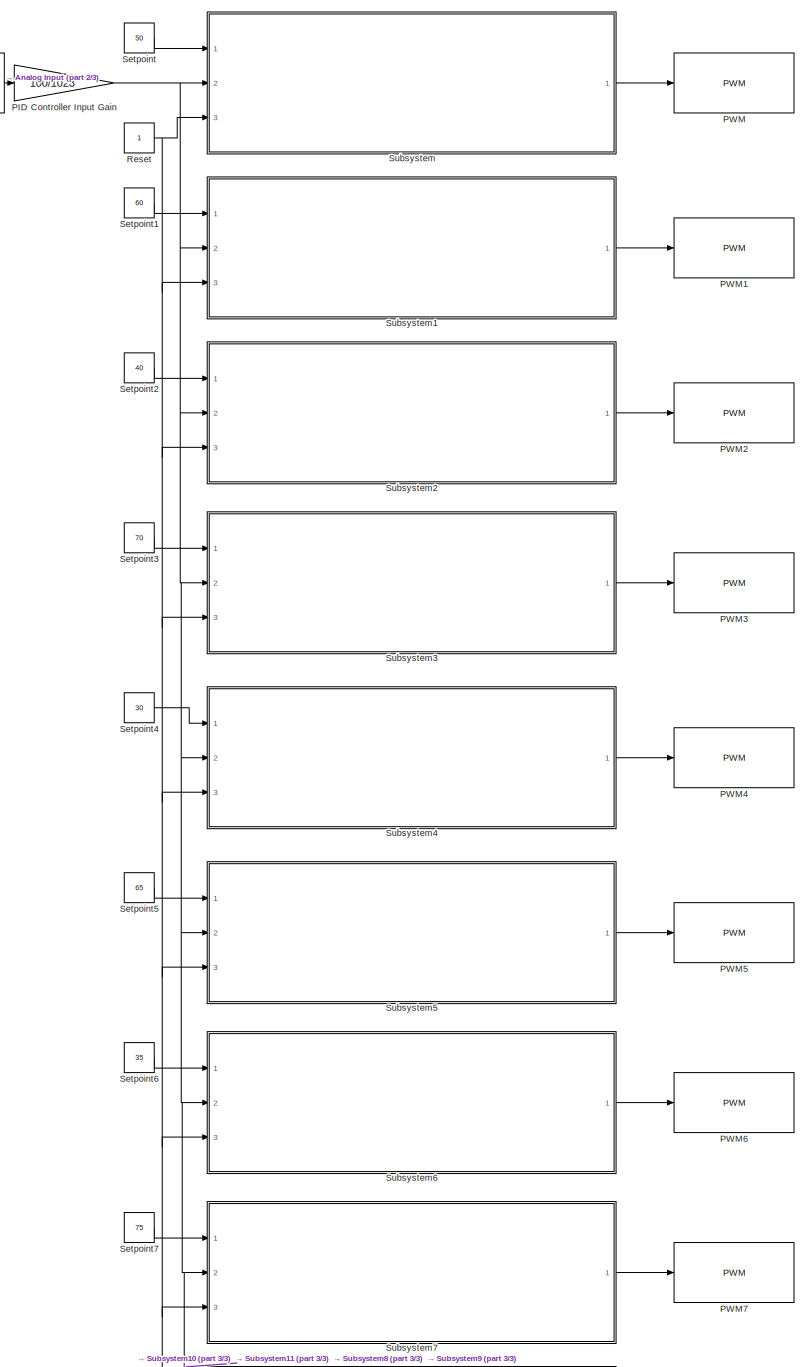
[diagram: root canvas - part 1/3, full width, middle band]
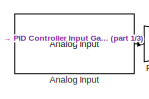
[diagram: root canvas - part 2/3, top left region]
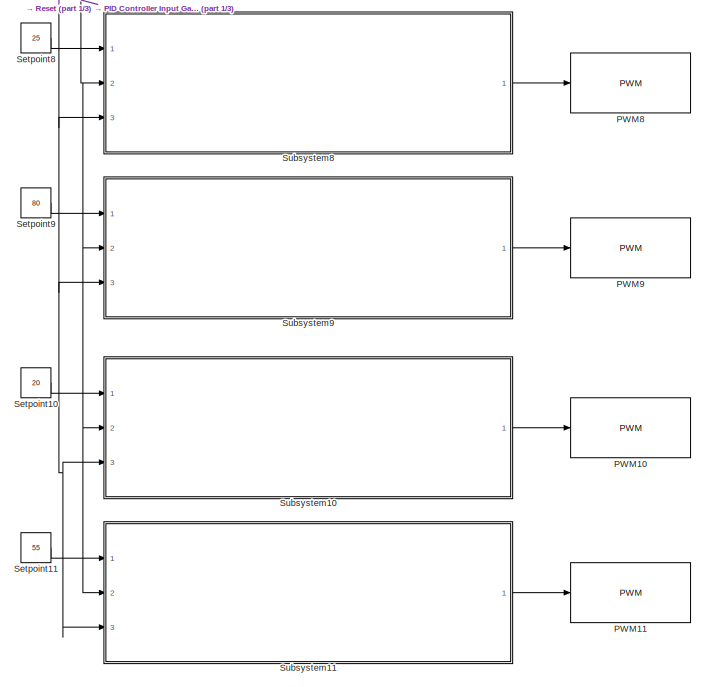
[diagram: root canvas - part 3/3, full width, bottom band]
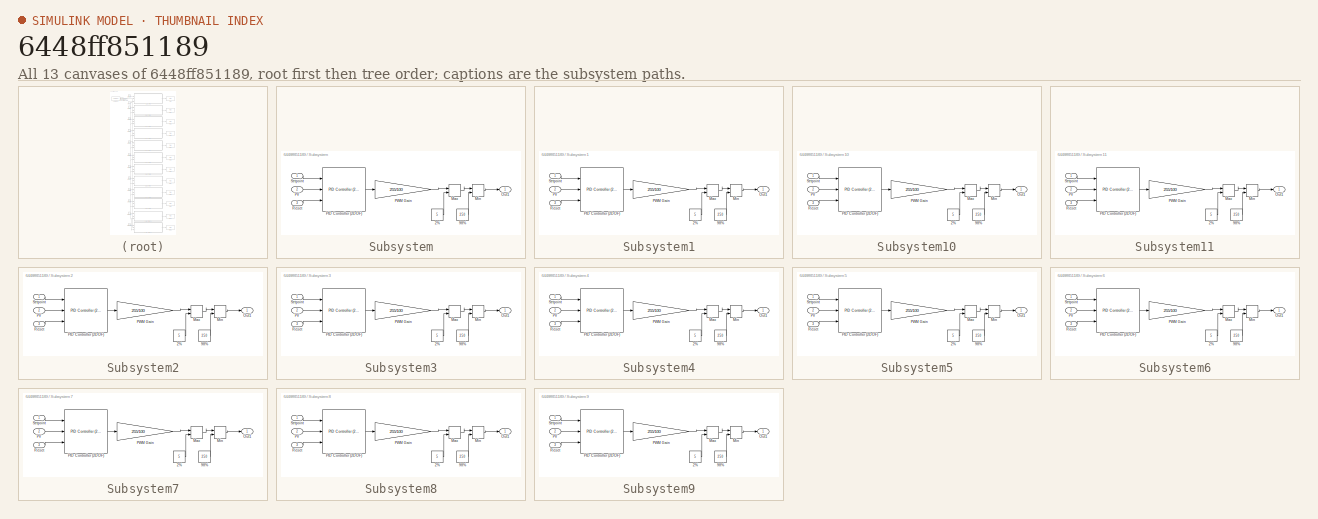
[diagram: thumbnail index - all 13 canvases of the model, root first then tree order]
MODEL slx_6448ff851189
KIND model
BLOCK [Reference] Analog Input  REF=arduinolib/Analog Input
  Ports = [0, 1]
  SourceBlock = arduinolib/Analog Input
  SourceType = Arduino Analog Input
  pinNumber = 0
  sampleTime = 1
BLOCK [Gain] PID Controller Input Gain
  Gain = 100/1023
  OutDataTypeStr = Inherit: Inherit via internal rule
  ParamDataTypeStr = Inherit: Inherit via internal rule
  SaturateOnIntegerOverflow = off
BLOCK [Reference] PWM  REF=arduinolib/PWM
  Ports = [1]
  SourceBlock = arduinolib/PWM
  SourceType = Arduino PWM
  pinNumber = 13
BLOCK [Reference] PWM1  REF=arduinolib/PWM
  Ports = [1]
  SourceBlock = arduinolib/PWM
  SourceType = Arduino PWM
  pinNumber = 12
BLOCK [Reference] PWM10  REF=arduinolib/PWM
  Ports = [1]
  SourceBlock = arduinolib/PWM
  SourceType = Arduino PWM
  pinNumber = 3
BLOCK [Reference] PWM11  REF=arduinolib/PWM
  Ports = [1]
  SourceBlock = arduinolib/PWM
  SourceType = Arduino PWM
  pinNumber = 2
BLOCK [Reference] PWM2  REF=arduinolib/PWM
  Ports = [1]
  SourceBlock = arduinolib/PWM
  SourceType = Arduino PWM
  pinNumber = 11
BLOCK [Reference] PWM3  REF=arduinolib/PWM
  Ports = [1]
  SourceBlock = arduinolib/PWM
  SourceType = Arduino PWM
  pinNumber = 10
BLOCK [Reference] PWM4  REF=arduinolib/PWM
  Ports = [1]
  SourceBlock = arduinolib/PWM
  SourceType = Arduino PWM
  pinNumber = 9
BLOCK [Reference] PWM5  REF=arduinolib/PWM
  Ports = [1]
  SourceBlock = arduinolib/PWM
  SourceType = Arduino PWM
  pinNumber = 8
BLOCK [Reference] PWM6  REF=arduinolib/PWM
  Ports = [1]
  SourceBlock = arduinolib/PWM
  SourceType = Arduino PWM
  pinNumber = 7
BLOCK [Reference] PWM7  REF=arduinolib/PWM
  Ports = [1]
  SourceBlock = arduinolib/PWM
  SourceType = Arduino PWM
  pinNumber = 6
BLOCK [Reference] PWM8  REF=arduinolib/PWM
  Ports = [1]
  SourceBlock = arduinolib/PWM
  SourceType = Arduino PWM
  pinNumber = 5
BLOCK [Reference] PWM9  REF=arduinolib/PWM
  Ports = [1]
  SourceBlock = arduinolib/PWM
  SourceType = Arduino PWM
  pinNumber = 4
BLOCK [Constant] Reset
BLOCK [Constant] Setpoint
  Value = 50
BLOCK [Constant] Setpoint1
  Value = 60
BLOCK [Constant] Setpoint10
  Value = 20
BLOCK [Constant] Setpoint11
  Value = 55
BLOCK [Constant] Setpoint2
  Value = 40
BLOCK [Constant] Setpoint3
  Value = 70
BLOCK [Constant] Setpoint4
  Value = 30
BLOCK [Constant] Setpoint5
  Value = 65
BLOCK [Constant] Setpoint6
  Value = 35
BLOCK [Constant] Setpoint7
  Value = 75
BLOCK [Constant] Setpoint8
  Value = 25
BLOCK [Constant] Setpoint9
  Value = 80
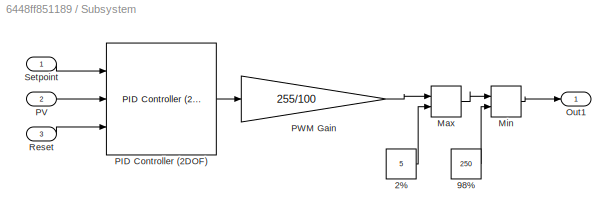
BLOCK [SubSystem] Subsystem
  Ports = [3, 1]
  RequestExecContextInheritance = off
BLOCK [Constant] Subsystem/2%
  Value = 5
BLOCK [Constant] Subsystem/98%
  Value = 250
BLOCK [MinMax] Subsystem/Max
  Function = max
  InputSameDT = off
  Inputs = 2
  Ports = [2, 1]
  SaturateOnIntegerOverflow = off
BLOCK [MinMax] Subsystem/Min
  InputSameDT = off
  Inputs = 2
  Ports = [2, 1]
  SaturateOnIntegerOverflow = off
BLOCK [Outport] Subsystem/Out1
  IconDisplay = Port number
BLOCK [Reference] Subsystem/PID Controller (2DOF)  REF=simulink/Continuous/PID Controller (2DOF)
  AntiWindupMode = none
  Controller = PI
  D = 0
  DOutDataTypeStr = Inherit: Inherit via internal rule
  DOutMax = []
  DOutMin = []
  DParamDataTypeStr = Inherit: Inherit via internal rule
  DParamMax = []
  DParamMin = []
  ExternalReset = falling
  FilterContinuousStateAttributes = ''
  FilterMethod = Forward Euler
  FilterOutDataTypeStr = Inherit: Inherit via internal rule
  FilterOutMax = []
  FilterOutMin = []
  FilterRTWStateStorageClass = Auto
  FilterStateMustResolveToSignalObject = off
  Form = Parallel
  I = 1
  IOutDataTypeStr = Inherit: Inherit via internal rule
  IOutMax = []
  IOutMin = []
  IParamDataTypeStr = Inherit: Inherit via internal rule
  IParamMax = []
  IParamMin = []
  IgnoreLimit = off
  InitialConditionForFilter = 0
  InitialConditionForIntegrator = 0
  InitialConditionSource = internal
  IntegratorContinuousStateAttributes = ''
  IntegratorMethod = Forward Euler
  IntegratorOutDataTypeStr = Inherit: Inherit via internal rule
  IntegratorOutMax = []
  IntegratorOutMin = []
  IntegratorRTWStateStorageClass = Auto
  IntegratorStateMustResolveToSignalObject = off
  Kb = 1
  KbOutDataTypeStr = Inherit: Inherit via internal rule
  KbOutMax = []
  KbOutMin = []
  KbParamDataTypeStr = Inherit: Inherit via internal rule
  KbParamMax = []
  KbParamMin = []
  Kt = 1
  KtOutDataTypeStr = Inherit: Inherit via internal rule
  KtOutMax = []
  KtOutMin = []
  KtParamDataTypeStr = Inherit: Inherit via internal rule
  KtParamMax = []
  KtParamMin = []
  LimitOutput = on
  LinearizeAsGain = on
  LockScale = off
  LowerSaturationLimit = 0
  N = 100
  NOutDataTypeStr = Inherit: Inherit via internal rule
  NOutMax = []
  NOutMin = []
  NParamDataTypeStr = Inherit: Inherit via internal rule
  NParamMax = []
  NParamMin = []
  P = 1
  POutDataTypeStr = Inherit: Inherit via internal rule
  POutMax = []
  POutMin = []
  PParamDataTypeStr = Inherit: Inherit via internal rule
  PParamMax = []
  PParamMin = []
  Ports = [3, 1]
  RndMeth = Floor
  SampleTime = 1
  SaturateOnIntegerOverflow = off
  SaturationOutDataTypeStr = Inherit: Same as input
  SaturationOutMax = []
  SaturationOutMin = []
  SourceBlock = simulink/Continuous/PID Controller (2DOF)
  SourceType = PID 2dof
  Sum1AccumDataTypeStr = Inherit: Inherit via internal rule
  Sum1OutDataTypeStr = Inherit: Inherit via internal rule
  Sum1OutMax = []
  Sum1OutMin = []
  Sum2AccumDataTypeStr = Inherit: Inherit via internal rule
  Sum2OutDataTypeStr = Inherit: Inherit via internal rule
  Sum2OutMax = []
  Sum2OutMin = []
  Sum3AccumDataTypeStr = Inherit: Inherit via internal rule
  Sum3OutDataTypeStr = Inherit: Inherit via internal rule
  Sum3OutMax = []
  Sum3OutMin = []
  SumAccumDataTypeStr = Inherit: Inherit via internal rule
  SumDAccumDataTypeStr = Inherit: Inherit via internal rule
  SumDOutDataTypeStr = Inherit: Inherit via internal rule
  SumDOutMax = []
  SumDOutMin = []
  SumI1AccumDataTypeStr = Inherit: Inherit via internal rule
  SumI1OutDataTypeStr = Inherit: Inherit via internal rule
  SumI1OutMax = []
  SumI1OutMin = []
  SumI2AccumDataTypeStr = Inherit: Inherit via internal rule
  SumI2OutDataTypeStr = Inherit: Inherit via internal rule
  SumI2OutMax = []
  SumI2OutMin = []
  SumI3AccumDataTypeStr = Inherit: Inherit via internal rule
  SumI3OutDataTypeStr = Inherit: Inherit via internal rule
  SumI3OutMax = []
  SumI3OutMin = []
  SumOutDataTypeStr = Inherit: Inherit via internal rule
  SumOutMax = []
  SumOutMin = []
  TimeDomain = Discrete-time
  TrackingMode = off
  UpperSaturationLimit = 100
  ZeroCross = on
  b = 1
  bOutDataTypeStr = Inherit: Inherit via internal rule
  bOutMax = []
  bOutMin = []
  bParamDataTypeStr = Inherit: Inherit via internal rule
  bParamMax = []
  bParamMin = []
  c = 1
  cOutDataTypeStr = Inherit: Inherit via internal rule
  cOutMax = []
  cOutMin = []
  cParamDataTypeStr = Inherit: Inherit via internal rule
  cParamMax = []
  cParamMin = []
BLOCK [Inport] Subsystem/PV
  IconDisplay = Port number
  Port = 2
BLOCK [Gain] Subsystem/PWM Gain
  Gain = 255/100
  OutDataTypeStr = Inherit: Inherit via internal rule
  ParamDataTypeStr = Inherit: Inherit via internal rule
  SaturateOnIntegerOverflow = off
BLOCK [Inport] Subsystem/Reset
  IconDisplay = Port number
  Port = 3
BLOCK [Inport] Subsystem/Setpoint
  IconDisplay = Port number
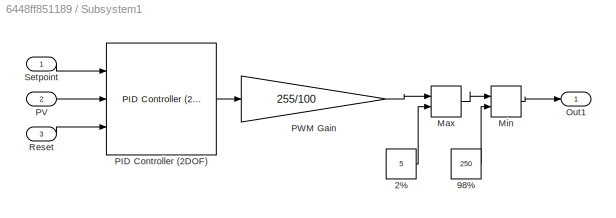
BLOCK [SubSystem] Subsystem1
  Ports = [3, 1]
  RequestExecContextInheritance = off
BLOCK [Constant] Subsystem1/2%
  Value = 5
BLOCK [Constant] Subsystem1/98%
  Value = 250
BLOCK [MinMax] Subsystem1/Max
  Function = max
  InputSameDT = off
  Inputs = 2
  Ports = [2, 1]
  SaturateOnIntegerOverflow = off
BLOCK [MinMax] Subsystem1/Min
  InputSameDT = off
  Inputs = 2
  Ports = [2, 1]
  SaturateOnIntegerOverflow = off
BLOCK [Outport] Subsystem1/Out1
  IconDisplay = Port number
BLOCK [Reference] Subsystem1/PID Controller (2DOF)  REF=simulink/Continuous/PID Controller (2DOF)
  AntiWindupMode = none
  Controller = PI
  D = 0
  DOutDataTypeStr = Inherit: Inherit via internal rule
  DOutMax = []
  DOutMin = []
  DParamDataTypeStr = Inherit: Inherit via internal rule
  DParamMax = []
  DParamMin = []
  ExternalReset = falling
  FilterContinuousStateAttributes = ''
  FilterMethod = Forward Euler
  FilterOutDataTypeStr = Inherit: Inherit via internal rule
  FilterOutMax = []
  FilterOutMin = []
  FilterRTWStateStorageClass = Auto
  FilterStateMustResolveToSignalObject = off
  Form = Parallel
  I = 1
  IOutDataTypeStr = Inherit: Inherit via internal rule
  IOutMax = []
  IOutMin = []
  IParamDataTypeStr = Inherit: Inherit via internal rule
  IParamMax = []
  IParamMin = []
  IgnoreLimit = off
  InitialConditionForFilter = 0
  InitialConditionForIntegrator = 0
  InitialConditionSource = internal
  IntegratorContinuousStateAttributes = ''
  IntegratorMethod = Forward Euler
  IntegratorOutDataTypeStr = Inherit: Inherit via internal rule
  IntegratorOutMax = []
  IntegratorOutMin = []
  IntegratorRTWStateStorageClass = Auto
  IntegratorStateMustResolveToSignalObject = off
  Kb = 1
  KbOutDataTypeStr = Inherit: Inherit via internal rule
  KbOutMax = []
  KbOutMin = []
  KbParamDataTypeStr = Inherit: Inherit via internal rule
  KbParamMax = []
  KbParamMin = []
  Kt = 1
  KtOutDataTypeStr = Inherit: Inherit via internal rule
  KtOutMax = []
  KtOutMin = []
  KtParamDataTypeStr = Inherit: Inherit via internal rule
  KtParamMax = []
  KtParamMin = []
  LimitOutput = on
  LinearizeAsGain = on
  LockScale = off
  LowerSaturationLimit = 0
  N = 100
  NOutDataTypeStr = Inherit: Inherit via internal rule
  NOutMax = []
  NOutMin = []
  NParamDataTypeStr = Inherit: Inherit via internal rule
  NParamMax = []
  NParamMin = []
  P = 1
  POutDataTypeStr = Inherit: Inherit via internal rule
  POutMax = []
  POutMin = []
  PParamDataTypeStr = Inherit: Inherit via internal rule
  PParamMax = []
  PParamMin = []
  Ports = [3, 1]
  RndMeth = Floor
  SampleTime = 1
  SaturateOnIntegerOverflow = off
  SaturationOutDataTypeStr = Inherit: Same as input
  SaturationOutMax = []
  SaturationOutMin = []
  SourceBlock = simulink/Continuous/PID Controller (2DOF)
  SourceType = PID 2dof
  Sum1AccumDataTypeStr = Inherit: Inherit via internal rule
  Sum1OutDataTypeStr = Inherit: Inherit via internal rule
  Sum1OutMax = []
  Sum1OutMin = []
  Sum2AccumDataTypeStr = Inherit: Inherit via internal rule
  Sum2OutDataTypeStr = Inherit: Inherit via internal rule
  Sum2OutMax = []
  Sum2OutMin = []
  Sum3AccumDataTypeStr = Inherit: Inherit via internal rule
  Sum3OutDataTypeStr = Inherit: Inherit via internal rule
  Sum3OutMax = []
  Sum3OutMin = []
  SumAccumDataTypeStr = Inherit: Inherit via internal rule
  SumDAccumDataTypeStr = Inherit: Inherit via internal rule
  SumDOutDataTypeStr = Inherit: Inherit via internal rule
  SumDOutMax = []
  SumDOutMin = []
  SumI1AccumDataTypeStr = Inherit: Inherit via internal rule
  SumI1OutDataTypeStr = Inherit: Inherit via internal rule
  SumI1OutMax = []
  SumI1OutMin = []
  SumI2AccumDataTypeStr = Inherit: Inherit via internal rule
  SumI2OutDataTypeStr = Inherit: Inherit via internal rule
  SumI2OutMax = []
  SumI2OutMin = []
  SumI3AccumDataTypeStr = Inherit: Inherit via internal rule
  SumI3OutDataTypeStr = Inherit: Inherit via internal rule
  SumI3OutMax = []
  SumI3OutMin = []
  SumOutDataTypeStr = Inherit: Inherit via internal rule
  SumOutMax = []
  SumOutMin = []
  TimeDomain = Discrete-time
  TrackingMode = off
  UpperSaturationLimit = 100
  ZeroCross = on
  b = 1
  bOutDataTypeStr = Inherit: Inherit via internal rule
  bOutMax = []
  bOutMin = []
  bParamDataTypeStr = Inherit: Inherit via internal rule
  bParamMax = []
  bParamMin = []
  c = 1
  cOutDataTypeStr = Inherit: Inherit via internal rule
  cOutMax = []
  cOutMin = []
  cParamDataTypeStr = Inherit: Inherit via internal rule
  cParamMax = []
  cParamMin = []
BLOCK [Inport] Subsystem1/PV
  IconDisplay = Port number
  Port = 2
BLOCK [Gain] Subsystem1/PWM Gain
  Gain = 255/100
  OutDataTypeStr = Inherit: Inherit via internal rule
  ParamDataTypeStr = Inherit: Inherit via internal rule
  SaturateOnIntegerOverflow = off
BLOCK [Inport] Subsystem1/Reset
  IconDisplay = Port number
  Port = 3
BLOCK [Inport] Subsystem1/Setpoint
  IconDisplay = Port number
BLOCK [SubSystem] Subsystem10
  Ports = [3, 1]
  RequestExecContextInheritance = off
BLOCK [Constant] Subsystem10/2%
  Value = 5
BLOCK [Constant] Subsystem10/98%
  Value = 250
BLOCK [MinMax] Subsystem10/Max
  Function = max
  InputSameDT = off
  Inputs = 2
  Ports = [2, 1]
  SaturateOnIntegerOverflow = off
BLOCK [MinMax] Subsystem10/Min
  InputSameDT = off
  Inputs = 2
  Ports = [2, 1]
  SaturateOnIntegerOverflow = off
BLOCK [Outport] Subsystem10/Out1
  IconDisplay = Port number
BLOCK [Reference] Subsystem10/PID Controller (2DOF)  REF=simulink/Continuous/PID Controller (2DOF)
  AntiWindupMode = none
  Controller = PI
  D = 0
  DOutDataTypeStr = Inherit: Inherit via internal rule
  DOutMax = []
  DOutMin = []
  DParamDataTypeStr = Inherit: Inherit via internal rule
  DParamMax = []
  DParamMin = []
  ExternalReset = falling
  FilterContinuousStateAttributes = ''
  FilterMethod = Forward Euler
  FilterOutDataTypeStr = Inherit: Inherit via internal rule
  FilterOutMax = []
  FilterOutMin = []
  FilterRTWStateStorageClass = Auto
  FilterStateMustResolveToSignalObject = off
  Form = Parallel
  I = 1
  IOutDataTypeStr = Inherit: Inherit via internal rule
  IOutMax = []
  IOutMin = []
  IParamDataTypeStr = Inherit: Inherit via internal rule
  IParamMax = []
  IParamMin = []
  IgnoreLimit = off
  InitialConditionForFilter = 0
  InitialConditionForIntegrator = 0
  InitialConditionSource = internal
  IntegratorContinuousStateAttributes = ''
  IntegratorMethod = Forward Euler
  IntegratorOutDataTypeStr = Inherit: Inherit via internal rule
  IntegratorOutMax = []
  IntegratorOutMin = []
  IntegratorRTWStateStorageClass = Auto
  IntegratorStateMustResolveToSignalObject = off
  Kb = 1
  KbOutDataTypeStr = Inherit: Inherit via internal rule
  KbOutMax = []
  KbOutMin = []
  KbParamDataTypeStr = Inherit: Inherit via internal rule
  KbParamMax = []
  KbParamMin = []
  Kt = 1
  KtOutDataTypeStr = Inherit: Inherit via internal rule
  KtOutMax = []
  KtOutMin = []
  KtParamDataTypeStr = Inherit: Inherit via internal rule
  KtParamMax = []
  KtParamMin = []
  LimitOutput = on
  LinearizeAsGain = on
  LockScale = off
  LowerSaturationLimit = 0
  N = 100
  NOutDataTypeStr = Inherit: Inherit via internal rule
  NOutMax = []
  NOutMin = []
  NParamDataTypeStr = Inherit: Inherit via internal rule
  NParamMax = []
  NParamMin = []
  P = 1
  POutDataTypeStr = Inherit: Inherit via internal rule
  POutMax = []
  POutMin = []
  PParamDataTypeStr = Inherit: Inherit via internal rule
  PParamMax = []
  PParamMin = []
  Ports = [3, 1]
  RndMeth = Floor
  SampleTime = 1
  SaturateOnIntegerOverflow = off
  SaturationOutDataTypeStr = Inherit: Same as input
  SaturationOutMax = []
  SaturationOutMin = []
  SourceBlock = simulink/Continuous/PID Controller (2DOF)
  SourceType = PID 2dof
  Sum1AccumDataTypeStr = Inherit: Inherit via internal rule
  Sum1OutDataTypeStr = Inherit: Inherit via internal rule
  Sum1OutMax = []
  Sum1OutMin = []
  Sum2AccumDataTypeStr = Inherit: Inherit via internal rule
  Sum2OutDataTypeStr = Inherit: Inherit via internal rule
  Sum2OutMax = []
  Sum2OutMin = []
  Sum3AccumDataTypeStr = Inherit: Inherit via internal rule
  Sum3OutDataTypeStr = Inherit: Inherit via internal rule
  Sum3OutMax = []
  Sum3OutMin = []
  SumAccumDataTypeStr = Inherit: Inherit via internal rule
  SumDAccumDataTypeStr = Inherit: Inherit via internal rule
  SumDOutDataTypeStr = Inherit: Inherit via internal rule
  SumDOutMax = []
  SumDOutMin = []
  SumI1AccumDataTypeStr = Inherit: Inherit via internal rule
  SumI1OutDataTypeStr = Inherit: Inherit via internal rule
  SumI1OutMax = []
  SumI1OutMin = []
  SumI2AccumDataTypeStr = Inherit: Inherit via internal rule
  SumI2OutDataTypeStr = Inherit: Inherit via internal rule
  SumI2OutMax = []
  SumI2OutMin = []
  SumI3AccumDataTypeStr = Inherit: Inherit via internal rule
  SumI3OutDataTypeStr = Inherit: Inherit via internal rule
  SumI3OutMax = []
  SumI3OutMin = []
  SumOutDataTypeStr = Inherit: Inherit via internal rule
  SumOutMax = []
  SumOutMin = []
  TimeDomain = Discrete-time
  TrackingMode = off
  UpperSaturationLimit = 100
  ZeroCross = on
  b = 1
  bOutDataTypeStr = Inherit: Inherit via internal rule
  bOutMax = []
  bOutMin = []
  bParamDataTypeStr = Inherit: Inherit via internal rule
  bParamMax = []
  bParamMin = []
  c = 1
  cOutDataTypeStr = Inherit: Inherit via internal rule
  cOutMax = []
  cOutMin = []
  cParamDataTypeStr = Inherit: Inherit via internal rule
  cParamMax = []
  cParamMin = []
BLOCK [Inport] Subsystem10/PV
  IconDisplay = Port number
  Port = 2
BLOCK [Gain] Subsystem10/PWM Gain
  Gain = 255/100
  OutDataTypeStr = Inherit: Inherit via internal rule
  ParamDataTypeStr = Inherit: Inherit via internal rule
  SaturateOnIntegerOverflow = off
BLOCK [Inport] Subsystem10/Reset
  IconDisplay = Port number
  Port = 3
BLOCK [Inport] Subsystem10/Setpoint
  IconDisplay = Port number
BLOCK [SubSystem] Subsystem11
  Ports = [3, 1]
  RequestExecContextInheritance = off
BLOCK [Constant] Subsystem11/2%
  Value = 5
BLOCK [Constant] Subsystem11/98%
  Value = 250
BLOCK [MinMax] Subsystem11/Max
  Function = max
  InputSameDT = off
  Inputs = 2
  Ports = [2, 1]
  SaturateOnIntegerOverflow = off
BLOCK [MinMax] Subsystem11/Min
  InputSameDT = off
  Inputs = 2
  Ports = [2, 1]
  SaturateOnIntegerOverflow = off
BLOCK [Outport] Subsystem11/Out1
  IconDisplay = Port number
BLOCK [Reference] Subsystem11/PID Controller (2DOF)  REF=simulink/Continuous/PID Controller (2DOF)
  AntiWindupMode = none
  Controller = PI
  D = 0
  DOutDataTypeStr = Inherit: Inherit via internal rule
  DOutMax = []
  DOutMin = []
  DParamDataTypeStr = Inherit: Inherit via internal rule
  DParamMax = []
  DParamMin = []
  ExternalReset = falling
  FilterContinuousStateAttributes = ''
  FilterMethod = Forward Euler
  FilterOutDataTypeStr = Inherit: Inherit via internal rule
  FilterOutMax = []
  FilterOutMin = []
  FilterRTWStateStorageClass = Auto
  FilterStateMustResolveToSignalObject = off
  Form = Parallel
  I = 1
  IOutDataTypeStr = Inherit: Inherit via internal rule
  IOutMax = []
  IOutMin = []
  IParamDataTypeStr = Inherit: Inherit via internal rule
  IParamMax = []
  IParamMin = []
  IgnoreLimit = off
  InitialConditionForFilter = 0
  InitialConditionForIntegrator = 0
  InitialConditionSource = internal
  IntegratorContinuousStateAttributes = ''
  IntegratorMethod = Forward Euler
  IntegratorOutDataTypeStr = Inherit: Inherit via internal rule
  IntegratorOutMax = []
  IntegratorOutMin = []
  IntegratorRTWStateStorageClass = Auto
  IntegratorStateMustResolveToSignalObject = off
  Kb = 1
  KbOutDataTypeStr = Inherit: Inherit via internal rule
  KbOutMax = []
  KbOutMin = []
  KbParamDataTypeStr = Inherit: Inherit via internal rule
  KbParamMax = []
  KbParamMin = []
  Kt = 1
  KtOutDataTypeStr = Inherit: Inherit via internal rule
  KtOutMax = []
  KtOutMin = []
  KtParamDataTypeStr = Inherit: Inherit via internal rule
  KtParamMax = []
  KtParamMin = []
  LimitOutput = on
  LinearizeAsGain = on
  LockScale = off
  LowerSaturationLimit = 0
  N = 100
  NOutDataTypeStr = Inherit: Inherit via internal rule
  NOutMax = []
  NOutMin = []
  NParamDataTypeStr = Inherit: Inherit via internal rule
  NParamMax = []
  NParamMin = []
  P = 1
  POutDataTypeStr = Inherit: Inherit via internal rule
  POutMax = []
  POutMin = []
  PParamDataTypeStr = Inherit: Inherit via internal rule
  PParamMax = []
  PParamMin = []
  Ports = [3, 1]
  RndMeth = Floor
  SampleTime = 1
  SaturateOnIntegerOverflow = off
  SaturationOutDataTypeStr = Inherit: Same as input
  SaturationOutMax = []
  SaturationOutMin = []
  SourceBlock = simulink/Continuous/PID Controller (2DOF)
  SourceType = PID 2dof
  Sum1AccumDataTypeStr = Inherit: Inherit via internal rule
  Sum1OutDataTypeStr = Inherit: Inherit via internal rule
  Sum1OutMax = []
  Sum1OutMin = []
  Sum2AccumDataTypeStr = Inherit: Inherit via internal rule
  Sum2OutDataTypeStr = Inherit: Inherit via internal rule
  Sum2OutMax = []
  Sum2OutMin = []
  Sum3AccumDataTypeStr = Inherit: Inherit via internal rule
  Sum3OutDataTypeStr = Inherit: Inherit via internal rule
  Sum3OutMax = []
  Sum3OutMin = []
  SumAccumDataTypeStr = Inherit: Inherit via internal rule
  SumDAccumDataTypeStr = Inherit: Inherit via internal rule
  SumDOutDataTypeStr = Inherit: Inherit via internal rule
  SumDOutMax = []
  SumDOutMin = []
  SumI1AccumDataTypeStr = Inherit: Inherit via internal rule
  SumI1OutDataTypeStr = Inherit: Inherit via internal rule
  SumI1OutMax = []
  SumI1OutMin = []
  SumI2AccumDataTypeStr = Inherit: Inherit via internal rule
  SumI2OutDataTypeStr = Inherit: Inherit via internal rule
  SumI2OutMax = []
  SumI2OutMin = []
  SumI3AccumDataTypeStr = Inherit: Inherit via internal rule
  SumI3OutDataTypeStr = Inherit: Inherit via internal rule
  SumI3OutMax = []
  SumI3OutMin = []
  SumOutDataTypeStr = Inherit: Inherit via internal rule
  SumOutMax = []
  SumOutMin = []
  TimeDomain = Discrete-time
  TrackingMode = off
  UpperSaturationLimit = 100
  ZeroCross = on
  b = 1
  bOutDataTypeStr = Inherit: Inherit via internal rule
  bOutMax = []
  bOutMin = []
  bParamDataTypeStr = Inherit: Inherit via internal rule
  bParamMax = []
  bParamMin = []
  c = 1
  cOutDataTypeStr = Inherit: Inherit via internal rule
  cOutMax = []
  cOutMin = []
  cParamDataTypeStr = Inherit: Inherit via internal rule
  cParamMax = []
  cParamMin = []
BLOCK [Inport] Subsystem11/PV
  IconDisplay = Port number
  Port = 2
BLOCK [Gain] Subsystem11/PWM Gain
  Gain = 255/100
  OutDataTypeStr = Inherit: Inherit via internal rule
  ParamDataTypeStr = Inherit: Inherit via internal rule
  SaturateOnIntegerOverflow = off
BLOCK [Inport] Subsystem11/Reset
  IconDisplay = Port number
  Port = 3
BLOCK [Inport] Subsystem11/Setpoint
  IconDisplay = Port number
BLOCK [SubSystem] Subsystem2
  Ports = [3, 1]
  RequestExecContextInheritance = off
BLOCK [Constant] Subsystem2/2%
  Value = 5
BLOCK [Constant] Subsystem2/98%
  Value = 250
BLOCK [MinMax] Subsystem2/Max
  Function = max
  InputSameDT = off
  Inputs = 2
  Ports = [2, 1]
  SaturateOnIntegerOverflow = off
BLOCK [MinMax] Subsystem2/Min
  InputSameDT = off
  Inputs = 2
  Ports = [2, 1]
  SaturateOnIntegerOverflow = off
BLOCK [Outport] Subsystem2/Out1
  IconDisplay = Port number
BLOCK [Reference] Subsystem2/PID Controller (2DOF)  REF=simulink/Continuous/PID Controller (2DOF)
  AntiWindupMode = none
  Controller = PI
  D = 0
  DOutDataTypeStr = Inherit: Inherit via internal rule
  DOutMax = []
  DOutMin = []
  DParamDataTypeStr = Inherit: Inherit via internal rule
  DParamMax = []
  DParamMin = []
  ExternalReset = falling
  FilterContinuousStateAttributes = ''
  FilterMethod = Forward Euler
  FilterOutDataTypeStr = Inherit: Inherit via internal rule
  FilterOutMax = []
  FilterOutMin = []
  FilterRTWStateStorageClass = Auto
  FilterStateMustResolveToSignalObject = off
  Form = Parallel
  I = 1
  IOutDataTypeStr = Inherit: Inherit via internal rule
  IOutMax = []
  IOutMin = []
  IParamDataTypeStr = Inherit: Inherit via internal rule
  IParamMax = []
  IParamMin = []
  IgnoreLimit = off
  InitialConditionForFilter = 0
  InitialConditionForIntegrator = 0
  InitialConditionSource = internal
  IntegratorContinuousStateAttributes = ''
  IntegratorMethod = Forward Euler
  IntegratorOutDataTypeStr = Inherit: Inherit via internal rule
  IntegratorOutMax = []
  IntegratorOutMin = []
  IntegratorRTWStateStorageClass = Auto
  IntegratorStateMustResolveToSignalObject = off
  Kb = 1
  KbOutDataTypeStr = Inherit: Inherit via internal rule
  KbOutMax = []
  KbOutMin = []
  KbParamDataTypeStr = Inherit: Inherit via internal rule
  KbParamMax = []
  KbParamMin = []
  Kt = 1
  KtOutDataTypeStr = Inherit: Inherit via internal rule
  KtOutMax = []
  KtOutMin = []
  KtParamDataTypeStr = Inherit: Inherit via internal rule
  KtParamMax = []
  KtParamMin = []
  LimitOutput = on
  LinearizeAsGain = on
  LockScale = off
  LowerSaturationLimit = 0
  N = 100
  NOutDataTypeStr = Inherit: Inherit via internal rule
  NOutMax = []
  NOutMin = []
  NParamDataTypeStr = Inherit: Inherit via internal rule
  NParamMax = []
  NParamMin = []
  P = 1
  POutDataTypeStr = Inherit: Inherit via internal rule
  POutMax = []
  POutMin = []
  PParamDataTypeStr = Inherit: Inherit via internal rule
  PParamMax = []
  PParamMin = []
  Ports = [3, 1]
  RndMeth = Floor
  SampleTime = 1
  SaturateOnIntegerOverflow = off
  SaturationOutDataTypeStr = Inherit: Same as input
  SaturationOutMax = []
  SaturationOutMin = []
  SourceBlock = simulink/Continuous/PID Controller (2DOF)
  SourceType = PID 2dof
  Sum1AccumDataTypeStr = Inherit: Inherit via internal rule
  Sum1OutDataTypeStr = Inherit: Inherit via internal rule
  Sum1OutMax = []
  Sum1OutMin = []
  Sum2AccumDataTypeStr = Inherit: Inherit via internal rule
  Sum2OutDataTypeStr = Inherit: Inherit via internal rule
  Sum2OutMax = []
  Sum2OutMin = []
  Sum3AccumDataTypeStr = Inherit: Inherit via internal rule
  Sum3OutDataTypeStr = Inherit: Inherit via internal rule
  Sum3OutMax = []
  Sum3OutMin = []
  SumAccumDataTypeStr = Inherit: Inherit via internal rule
  SumDAccumDataTypeStr = Inherit: Inherit via internal rule
  SumDOutDataTypeStr = Inherit: Inherit via internal rule
  SumDOutMax = []
  SumDOutMin = []
  SumI1AccumDataTypeStr = Inherit: Inherit via internal rule
  SumI1OutDataTypeStr = Inherit: Inherit via internal rule
  SumI1OutMax = []
  SumI1OutMin = []
  SumI2AccumDataTypeStr = Inherit: Inherit via internal rule
  SumI2OutDataTypeStr = Inherit: Inherit via internal rule
  SumI2OutMax = []
  SumI2OutMin = []
  SumI3AccumDataTypeStr = Inherit: Inherit via internal rule
  SumI3OutDataTypeStr = Inherit: Inherit via internal rule
  SumI3OutMax = []
  SumI3OutMin = []
  SumOutDataTypeStr = Inherit: Inherit via internal rule
  SumOutMax = []
  SumOutMin = []
  TimeDomain = Discrete-time
  TrackingMode = off
  UpperSaturationLimit = 100
  ZeroCross = on
  b = 1
  bOutDataTypeStr = Inherit: Inherit via internal rule
  bOutMax = []
  bOutMin = []
  bParamDataTypeStr = Inherit: Inherit via internal rule
  bParamMax = []
  bParamMin = []
  c = 1
  cOutDataTypeStr = Inherit: Inherit via internal rule
  cOutMax = []
  cOutMin = []
  cParamDataTypeStr = Inherit: Inherit via internal rule
  cParamMax = []
  cParamMin = []
BLOCK [Inport] Subsystem2/PV
  IconDisplay = Port number
  Port = 2
BLOCK [Gain] Subsystem2/PWM Gain
  Gain = 255/100
  OutDataTypeStr = Inherit: Inherit via internal rule
  ParamDataTypeStr = Inherit: Inherit via internal rule
  SaturateOnIntegerOverflow = off
BLOCK [Inport] Subsystem2/Reset
  IconDisplay = Port number
  Port = 3
BLOCK [Inport] Subsystem2/Setpoint
  IconDisplay = Port number
BLOCK [SubSystem] Subsystem3
  Ports = [3, 1]
  RequestExecContextInheritance = off
BLOCK [Constant] Subsystem3/2%
  Value = 5
BLOCK [Constant] Subsystem3/98%
  Value = 250
BLOCK [MinMax] Subsystem3/Max
  Function = max
  InputSameDT = off
  Inputs = 2
  Ports = [2, 1]
  SaturateOnIntegerOverflow = off
BLOCK [MinMax] Subsystem3/Min
  InputSameDT = off
  Inputs = 2
  Ports = [2, 1]
  SaturateOnIntegerOverflow = off
BLOCK [Outport] Subsystem3/Out1
  IconDisplay = Port number
BLOCK [Reference] Subsystem3/PID Controller (2DOF)  REF=simulink/Continuous/PID Controller (2DOF)
  AntiWindupMode = none
  Controller = PI
  D = 0
  DOutDataTypeStr = Inherit: Inherit via internal rule
  DOutMax = []
  DOutMin = []
  DParamDataTypeStr = Inherit: Inherit via internal rule
  DParamMax = []
  DParamMin = []
  ExternalReset = falling
  FilterContinuousStateAttributes = ''
  FilterMethod = Forward Euler
  FilterOutDataTypeStr = Inherit: Inherit via internal rule
  FilterOutMax = []
  FilterOutMin = []
  FilterRTWStateStorageClass = Auto
  FilterStateMustResolveToSignalObject = off
  Form = Parallel
  I = 1
  IOutDataTypeStr = Inherit: Inherit via internal rule
  IOutMax = []
  IOutMin = []
  IParamDataTypeStr = Inherit: Inherit via internal rule
  IParamMax = []
  IParamMin = []
  IgnoreLimit = off
  InitialConditionForFilter = 0
  InitialConditionForIntegrator = 0
  InitialConditionSource = internal
  IntegratorContinuousStateAttributes = ''
  IntegratorMethod = Forward Euler
  IntegratorOutDataTypeStr = Inherit: Inherit via internal rule
  IntegratorOutMax = []
  IntegratorOutMin = []
  IntegratorRTWStateStorageClass = Auto
  IntegratorStateMustResolveToSignalObject = off
  Kb = 1
  KbOutDataTypeStr = Inherit: Inherit via internal rule
  KbOutMax = []
  KbOutMin = []
  KbParamDataTypeStr = Inherit: Inherit via internal rule
  KbParamMax = []
  KbParamMin = []
  Kt = 1
  KtOutDataTypeStr = Inherit: Inherit via internal rule
  KtOutMax = []
  KtOutMin = []
  KtParamDataTypeStr = Inherit: Inherit via internal rule
  KtParamMax = []
  KtParamMin = []
  LimitOutput = on
  LinearizeAsGain = on
  LockScale = off
  LowerSaturationLimit = 0
  N = 100
  NOutDataTypeStr = Inherit: Inherit via internal rule
  NOutMax = []
  NOutMin = []
  NParamDataTypeStr = Inherit: Inherit via internal rule
  NParamMax = []
  NParamMin = []
  P = 1
  POutDataTypeStr = Inherit: Inherit via internal rule
  POutMax = []
  POutMin = []
  PParamDataTypeStr = Inherit: Inherit via internal rule
  PParamMax = []
  PParamMin = []
  Ports = [3, 1]
  RndMeth = Floor
  SampleTime = 1
  SaturateOnIntegerOverflow = off
  SaturationOutDataTypeStr = Inherit: Same as input
  SaturationOutMax = []
  SaturationOutMin = []
  SourceBlock = simulink/Continuous/PID Controller (2DOF)
  SourceType = PID 2dof
  Sum1AccumDataTypeStr = Inherit: Inherit via internal rule
  Sum1OutDataTypeStr = Inherit: Inherit via internal rule
  Sum1OutMax = []
  Sum1OutMin = []
  Sum2AccumDataTypeStr = Inherit: Inherit via internal rule
  Sum2OutDataTypeStr = Inherit: Inherit via internal rule
  Sum2OutMax = []
  Sum2OutMin = []
  Sum3AccumDataTypeStr = Inherit: Inherit via internal rule
  Sum3OutDataTypeStr = Inherit: Inherit via internal rule
  Sum3OutMax = []
  Sum3OutMin = []
  SumAccumDataTypeStr = Inherit: Inherit via internal rule
  SumDAccumDataTypeStr = Inherit: Inherit via internal rule
  SumDOutDataTypeStr = Inherit: Inherit via internal rule
  SumDOutMax = []
  SumDOutMin = []
  SumI1AccumDataTypeStr = Inherit: Inherit via internal rule
  SumI1OutDataTypeStr = Inherit: Inherit via internal rule
  SumI1OutMax = []
  SumI1OutMin = []
  SumI2AccumDataTypeStr = Inherit: Inherit via internal rule
  SumI2OutDataTypeStr = Inherit: Inherit via internal rule
  SumI2OutMax = []
  SumI2OutMin = []
  SumI3AccumDataTypeStr = Inherit: Inherit via internal rule
  SumI3OutDataTypeStr = Inherit: Inherit via internal rule
  SumI3OutMax = []
  SumI3OutMin = []
  SumOutDataTypeStr = Inherit: Inherit via internal rule
  SumOutMax = []
  SumOutMin = []
  TimeDomain = Discrete-time
  TrackingMode = off
  UpperSaturationLimit = 100
  ZeroCross = on
  b = 1
  bOutDataTypeStr = Inherit: Inherit via internal rule
  bOutMax = []
  bOutMin = []
  bParamDataTypeStr = Inherit: Inherit via internal rule
  bParamMax = []
  bParamMin = []
  c = 1
  cOutDataTypeStr = Inherit: Inherit via internal rule
  cOutMax = []
  cOutMin = []
  cParamDataTypeStr = Inherit: Inherit via internal rule
  cParamMax = []
  cParamMin = []
BLOCK [Inport] Subsystem3/PV
  IconDisplay = Port number
  Port = 2
BLOCK [Gain] Subsystem3/PWM Gain
  Gain = 255/100
  OutDataTypeStr = Inherit: Inherit via internal rule
  ParamDataTypeStr = Inherit: Inherit via internal rule
  SaturateOnIntegerOverflow = off
BLOCK [Inport] Subsystem3/Reset
  IconDisplay = Port number
  Port = 3
BLOCK [Inport] Subsystem3/Setpoint
  IconDisplay = Port number
BLOCK [SubSystem] Subsystem4
  Ports = [3, 1]
  RequestExecContextInheritance = off
BLOCK [Constant] Subsystem4/2%
  Value = 5
BLOCK [Constant] Subsystem4/98%
  Value = 250
BLOCK [MinMax] Subsystem4/Max
  Function = max
  InputSameDT = off
  Inputs = 2
  Ports = [2, 1]
  SaturateOnIntegerOverflow = off
BLOCK [MinMax] Subsystem4/Min
  InputSameDT = off
  Inputs = 2
  Ports = [2, 1]
  SaturateOnIntegerOverflow = off
BLOCK [Outport] Subsystem4/Out1
  IconDisplay = Port number
BLOCK [Reference] Subsystem4/PID Controller (2DOF)  REF=simulink/Continuous/PID Controller (2DOF)
  AntiWindupMode = none
  Controller = PI
  D = 0
  DOutDataTypeStr = Inherit: Inherit via internal rule
  DOutMax = []
  DOutMin = []
  DParamDataTypeStr = Inherit: Inherit via internal rule
  DParamMax = []
  DParamMin = []
  ExternalReset = falling
  FilterContinuousStateAttributes = ''
  FilterMethod = Forward Euler
  FilterOutDataTypeStr = Inherit: Inherit via internal rule
  FilterOutMax = []
  FilterOutMin = []
  FilterRTWStateStorageClass = Auto
  FilterStateMustResolveToSignalObject = off
  Form = Parallel
  I = 1
  IOutDataTypeStr = Inherit: Inherit via internal rule
  IOutMax = []
  IOutMin = []
  IParamDataTypeStr = Inherit: Inherit via internal rule
  IParamMax = []
  IParamMin = []
  IgnoreLimit = off
  InitialConditionForFilter = 0
  InitialConditionForIntegrator = 0
  InitialConditionSource = internal
  IntegratorContinuousStateAttributes = ''
  IntegratorMethod = Forward Euler
  IntegratorOutDataTypeStr = Inherit: Inherit via internal rule
  IntegratorOutMax = []
  IntegratorOutMin = []
  IntegratorRTWStateStorageClass = Auto
  IntegratorStateMustResolveToSignalObject = off
  Kb = 1
  KbOutDataTypeStr = Inherit: Inherit via internal rule
  KbOutMax = []
  KbOutMin = []
  KbParamDataTypeStr = Inherit: Inherit via internal rule
  KbParamMax = []
  KbParamMin = []
  Kt = 1
  KtOutDataTypeStr = Inherit: Inherit via internal rule
  KtOutMax = []
  KtOutMin = []
  KtParamDataTypeStr = Inherit: Inherit via internal rule
  KtParamMax = []
  KtParamMin = []
  LimitOutput = on
  LinearizeAsGain = on
  LockScale = off
  LowerSaturationLimit = 0
  N = 100
  NOutDataTypeStr = Inherit: Inherit via internal rule
  NOutMax = []
  NOutMin = []
  NParamDataTypeStr = Inherit: Inherit via internal rule
  NParamMax = []
  NParamMin = []
  P = 1
  POutDataTypeStr = Inherit: Inherit via internal rule
  POutMax = []
  POutMin = []
  PParamDataTypeStr = Inherit: Inherit via internal rule
  PParamMax = []
  PParamMin = []
  Ports = [3, 1]
  RndMeth = Floor
  SampleTime = 1
  SaturateOnIntegerOverflow = off
  SaturationOutDataTypeStr = Inherit: Same as input
  SaturationOutMax = []
  SaturationOutMin = []
  SourceBlock = simulink/Continuous/PID Controller (2DOF)
  SourceType = PID 2dof
  Sum1AccumDataTypeStr = Inherit: Inherit via internal rule
  Sum1OutDataTypeStr = Inherit: Inherit via internal rule
  Sum1OutMax = []
  Sum1OutMin = []
  Sum2AccumDataTypeStr = Inherit: Inherit via internal rule
  Sum2OutDataTypeStr = Inherit: Inherit via internal rule
  Sum2OutMax = []
  Sum2OutMin = []
  Sum3AccumDataTypeStr = Inherit: Inherit via internal rule
  Sum3OutDataTypeStr = Inherit: Inherit via internal rule
  Sum3OutMax = []
  Sum3OutMin = []
  SumAccumDataTypeStr = Inherit: Inherit via internal rule
  SumDAccumDataTypeStr = Inherit: Inherit via internal rule
  SumDOutDataTypeStr = Inherit: Inherit via internal rule
  SumDOutMax = []
  SumDOutMin = []
  SumI1AccumDataTypeStr = Inherit: Inherit via internal rule
  SumI1OutDataTypeStr = Inherit: Inherit via internal rule
  SumI1OutMax = []
  SumI1OutMin = []
  SumI2AccumDataTypeStr = Inherit: Inherit via internal rule
  SumI2OutDataTypeStr = Inherit: Inherit via internal rule
  SumI2OutMax = []
  SumI2OutMin = []
  SumI3AccumDataTypeStr = Inherit: Inherit via internal rule
  SumI3OutDataTypeStr = Inherit: Inherit via internal rule
  SumI3OutMax = []
  SumI3OutMin = []
  SumOutDataTypeStr = Inherit: Inherit via internal rule
  SumOutMax = []
  SumOutMin = []
  TimeDomain = Discrete-time
  TrackingMode = off
  UpperSaturationLimit = 100
  ZeroCross = on
  b = 1
  bOutDataTypeStr = Inherit: Inherit via internal rule
  bOutMax = []
  bOutMin = []
  bParamDataTypeStr = Inherit: Inherit via internal rule
  bParamMax = []
  bParamMin = []
  c = 1
  cOutDataTypeStr = Inherit: Inherit via internal rule
  cOutMax = []
  cOutMin = []
  cParamDataTypeStr = Inherit: Inherit via internal rule
  cParamMax = []
  cParamMin = []
BLOCK [Inport] Subsystem4/PV
  IconDisplay = Port number
  Port = 2
BLOCK [Gain] Subsystem4/PWM Gain
  Gain = 255/100
  OutDataTypeStr = Inherit: Inherit via internal rule
  ParamDataTypeStr = Inherit: Inherit via internal rule
  SaturateOnIntegerOverflow = off
BLOCK [Inport] Subsystem4/Reset
  IconDisplay = Port number
  Port = 3
BLOCK [Inport] Subsystem4/Setpoint
  IconDisplay = Port number
BLOCK [SubSystem] Subsystem5
  Ports = [3, 1]
  RequestExecContextInheritance = off
BLOCK [Constant] Subsystem5/2%
  Value = 5
BLOCK [Constant] Subsystem5/98%
  Value = 250
BLOCK [MinMax] Subsystem5/Max
  Function = max
  InputSameDT = off
  Inputs = 2
  Ports = [2, 1]
  SaturateOnIntegerOverflow = off
BLOCK [MinMax] Subsystem5/Min
  InputSameDT = off
  Inputs = 2
  Ports = [2, 1]
  SaturateOnIntegerOverflow = off
BLOCK [Outport] Subsystem5/Out1
  IconDisplay = Port number
BLOCK [Reference] Subsystem5/PID Controller (2DOF)  REF=simulink/Continuous/PID Controller (2DOF)
  AntiWindupMode = none
  Controller = PI
  D = 0
  DOutDataTypeStr = Inherit: Inherit via internal rule
  DOutMax = []
  DOutMin = []
  DParamDataTypeStr = Inherit: Inherit via internal rule
  DParamMax = []
  DParamMin = []
  ExternalReset = falling
  FilterContinuousStateAttributes = ''
  FilterMethod = Forward Euler
  FilterOutDataTypeStr = Inherit: Inherit via internal rule
  FilterOutMax = []
  FilterOutMin = []
  FilterRTWStateStorageClass = Auto
  FilterStateMustResolveToSignalObject = off
  Form = Parallel
  I = 1
  IOutDataTypeStr = Inherit: Inherit via internal rule
  IOutMax = []
  IOutMin = []
  IParamDataTypeStr = Inherit: Inherit via internal rule
  IParamMax = []
  IParamMin = []
  IgnoreLimit = off
  InitialConditionForFilter = 0
  InitialConditionForIntegrator = 0
  InitialConditionSource = internal
  IntegratorContinuousStateAttributes = ''
  IntegratorMethod = Forward Euler
  IntegratorOutDataTypeStr = Inherit: Inherit via internal rule
  IntegratorOutMax = []
  IntegratorOutMin = []
  IntegratorRTWStateStorageClass = Auto
  IntegratorStateMustResolveToSignalObject = off
  Kb = 1
  KbOutDataTypeStr = Inherit: Inherit via internal rule
  KbOutMax = []
  KbOutMin = []
  KbParamDataTypeStr = Inherit: Inherit via internal rule
  KbParamMax = []
  KbParamMin = []
  Kt = 1
  KtOutDataTypeStr = Inherit: Inherit via internal rule
  KtOutMax = []
  KtOutMin = []
  KtParamDataTypeStr = Inherit: Inherit via internal rule
  KtParamMax = []
  KtParamMin = []
  LimitOutput = on
  LinearizeAsGain = on
  LockScale = off
  LowerSaturationLimit = 0
  N = 100
  NOutDataTypeStr = Inherit: Inherit via internal rule
  NOutMax = []
  NOutMin = []
  NParamDataTypeStr = Inherit: Inherit via internal rule
  NParamMax = []
  NParamMin = []
  P = 1
  POutDataTypeStr = Inherit: Inherit via internal rule
  POutMax = []
  POutMin = []
  PParamDataTypeStr = Inherit: Inherit via internal rule
  PParamMax = []
  PParamMin = []
  Ports = [3, 1]
  RndMeth = Floor
  SampleTime = 1
  SaturateOnIntegerOverflow = off
  SaturationOutDataTypeStr = Inherit: Same as input
  SaturationOutMax = []
  SaturationOutMin = []
  SourceBlock = simulink/Continuous/PID Controller (2DOF)
  SourceType = PID 2dof
  Sum1AccumDataTypeStr = Inherit: Inherit via internal rule
  Sum1OutDataTypeStr = Inherit: Inherit via internal rule
  Sum1OutMax = []
  Sum1OutMin = []
  Sum2AccumDataTypeStr = Inherit: Inherit via internal rule
  Sum2OutDataTypeStr = Inherit: Inherit via internal rule
  Sum2OutMax = []
  Sum2OutMin = []
  Sum3AccumDataTypeStr = Inherit: Inherit via internal rule
  Sum3OutDataTypeStr = Inherit: Inherit via internal rule
  Sum3OutMax = []
  Sum3OutMin = []
  SumAccumDataTypeStr = Inherit: Inherit via internal rule
  SumDAccumDataTypeStr = Inherit: Inherit via internal rule
  SumDOutDataTypeStr = Inherit: Inherit via internal rule
  SumDOutMax = []
  SumDOutMin = []
  SumI1AccumDataTypeStr = Inherit: Inherit via internal rule
  SumI1OutDataTypeStr = Inherit: Inherit via internal rule
  SumI1OutMax = []
  SumI1OutMin = []
  SumI2AccumDataTypeStr = Inherit: Inherit via internal rule
  SumI2OutDataTypeStr = Inherit: Inherit via internal rule
  SumI2OutMax = []
  SumI2OutMin = []
  SumI3AccumDataTypeStr = Inherit: Inherit via internal rule
  SumI3OutDataTypeStr = Inherit: Inherit via internal rule
  SumI3OutMax = []
  SumI3OutMin = []
  SumOutDataTypeStr = Inherit: Inherit via internal rule
  SumOutMax = []
  SumOutMin = []
  TimeDomain = Discrete-time
  TrackingMode = off
  UpperSaturationLimit = 100
  ZeroCross = on
  b = 1
  bOutDataTypeStr = Inherit: Inherit via internal rule
  bOutMax = []
  bOutMin = []
  bParamDataTypeStr = Inherit: Inherit via internal rule
  bParamMax = []
  bParamMin = []
  c = 1
  cOutDataTypeStr = Inherit: Inherit via internal rule
  cOutMax = []
  cOutMin = []
  cParamDataTypeStr = Inherit: Inherit via internal rule
  cParamMax = []
  cParamMin = []
BLOCK [Inport] Subsystem5/PV
  IconDisplay = Port number
  Port = 2
BLOCK [Gain] Subsystem5/PWM Gain
  Gain = 255/100
  OutDataTypeStr = Inherit: Inherit via internal rule
  ParamDataTypeStr = Inherit: Inherit via internal rule
  SaturateOnIntegerOverflow = off
BLOCK [Inport] Subsystem5/Reset
  IconDisplay = Port number
  Port = 3
BLOCK [Inport] Subsystem5/Setpoint
  IconDisplay = Port number
BLOCK [SubSystem] Subsystem6
  Ports = [3, 1]
  RequestExecContextInheritance = off
BLOCK [Constant] Subsystem6/2%
  Value = 5
BLOCK [Constant] Subsystem6/98%
  Value = 250
BLOCK [MinMax] Subsystem6/Max
  Function = max
  InputSameDT = off
  Inputs = 2
  Ports = [2, 1]
  SaturateOnIntegerOverflow = off
BLOCK [MinMax] Subsystem6/Min
  InputSameDT = off
  Inputs = 2
  Ports = [2, 1]
  SaturateOnIntegerOverflow = off
BLOCK [Outport] Subsystem6/Out1
  IconDisplay = Port number
BLOCK [Reference] Subsystem6/PID Controller (2DOF)  REF=simulink/Continuous/PID Controller (2DOF)
  AntiWindupMode = none
  Controller = PI
  D = 0
  DOutDataTypeStr = Inherit: Inherit via internal rule
  DOutMax = []
  DOutMin = []
  DParamDataTypeStr = Inherit: Inherit via internal rule
  DParamMax = []
  DParamMin = []
  ExternalReset = falling
  FilterContinuousStateAttributes = ''
  FilterMethod = Forward Euler
  FilterOutDataTypeStr = Inherit: Inherit via internal rule
  FilterOutMax = []
  FilterOutMin = []
  FilterRTWStateStorageClass = Auto
  FilterStateMustResolveToSignalObject = off
  Form = Parallel
  I = 1
  IOutDataTypeStr = Inherit: Inherit via internal rule
  IOutMax = []
  IOutMin = []
  IParamDataTypeStr = Inherit: Inherit via internal rule
  IParamMax = []
  IParamMin = []
  IgnoreLimit = off
  InitialConditionForFilter = 0
  InitialConditionForIntegrator = 0
  InitialConditionSource = internal
  IntegratorContinuousStateAttributes = ''
  IntegratorMethod = Forward Euler
  IntegratorOutDataTypeStr = Inherit: Inherit via internal rule
  IntegratorOutMax = []
  IntegratorOutMin = []
  IntegratorRTWStateStorageClass = Auto
  IntegratorStateMustResolveToSignalObject = off
  Kb = 1
  KbOutDataTypeStr = Inherit: Inherit via internal rule
  KbOutMax = []
  KbOutMin = []
  KbParamDataTypeStr = Inherit: Inherit via internal rule
  KbParamMax = []
  KbParamMin = []
  Kt = 1
  KtOutDataTypeStr = Inherit: Inherit via internal rule
  KtOutMax = []
  KtOutMin = []
  KtParamDataTypeStr = Inherit: Inherit via internal rule
  KtParamMax = []
  KtParamMin = []
  LimitOutput = on
  LinearizeAsGain = on
  LockScale = off
  LowerSaturationLimit = 0
  N = 100
  NOutDataTypeStr = Inherit: Inherit via internal rule
  NOutMax = []
  NOutMin = []
  NParamDataTypeStr = Inherit: Inherit via internal rule
  NParamMax = []
  NParamMin = []
  P = 1
  POutDataTypeStr = Inherit: Inherit via internal rule
  POutMax = []
  POutMin = []
  PParamDataTypeStr = Inherit: Inherit via internal rule
  PParamMax = []
  PParamMin = []
  Ports = [3, 1]
  RndMeth = Floor
  SampleTime = 1
  SaturateOnIntegerOverflow = off
  SaturationOutDataTypeStr = Inherit: Same as input
  SaturationOutMax = []
  SaturationOutMin = []
  SourceBlock = simulink/Continuous/PID Controller (2DOF)
  SourceType = PID 2dof
  Sum1AccumDataTypeStr = Inherit: Inherit via internal rule
  Sum1OutDataTypeStr = Inherit: Inherit via internal rule
  Sum1OutMax = []
  Sum1OutMin = []
  Sum2AccumDataTypeStr = Inherit: Inherit via internal rule
  Sum2OutDataTypeStr = Inherit: Inherit via internal rule
  Sum2OutMax = []
  Sum2OutMin = []
  Sum3AccumDataTypeStr = Inherit: Inherit via internal rule
  Sum3OutDataTypeStr = Inherit: Inherit via internal rule
  Sum3OutMax = []
  Sum3OutMin = []
  SumAccumDataTypeStr = Inherit: Inherit via internal rule
  SumDAccumDataTypeStr = Inherit: Inherit via internal rule
  SumDOutDataTypeStr = Inherit: Inherit via internal rule
  SumDOutMax = []
  SumDOutMin = []
  SumI1AccumDataTypeStr = Inherit: Inherit via internal rule
  SumI1OutDataTypeStr = Inherit: Inherit via internal rule
  SumI1OutMax = []
  SumI1OutMin = []
  SumI2AccumDataTypeStr = Inherit: Inherit via internal rule
  SumI2OutDataTypeStr = Inherit: Inherit via internal rule
  SumI2OutMax = []
  SumI2OutMin = []
  SumI3AccumDataTypeStr = Inherit: Inherit via internal rule
  SumI3OutDataTypeStr = Inherit: Inherit via internal rule
  SumI3OutMax = []
  SumI3OutMin = []
  SumOutDataTypeStr = Inherit: Inherit via internal rule
  SumOutMax = []
  SumOutMin = []
  TimeDomain = Discrete-time
  TrackingMode = off
  UpperSaturationLimit = 100
  ZeroCross = on
  b = 1
  bOutDataTypeStr = Inherit: Inherit via internal rule
  bOutMax = []
  bOutMin = []
  bParamDataTypeStr = Inherit: Inherit via internal rule
  bParamMax = []
  bParamMin = []
  c = 1
  cOutDataTypeStr = Inherit: Inherit via internal rule
  cOutMax = []
  cOutMin = []
  cParamDataTypeStr = Inherit: Inherit via internal rule
  cParamMax = []
  cParamMin = []
BLOCK [Inport] Subsystem6/PV
  IconDisplay = Port number
  Port = 2
BLOCK [Gain] Subsystem6/PWM Gain
  Gain = 255/100
  OutDataTypeStr = Inherit: Inherit via internal rule
  ParamDataTypeStr = Inherit: Inherit via internal rule
  SaturateOnIntegerOverflow = off
BLOCK [Inport] Subsystem6/Reset
  IconDisplay = Port number
  Port = 3
BLOCK [Inport] Subsystem6/Setpoint
  IconDisplay = Port number
BLOCK [SubSystem] Subsystem7
  Ports = [3, 1]
  RequestExecContextInheritance = off
BLOCK [Constant] Subsystem7/2%
  Value = 5
BLOCK [Constant] Subsystem7/98%
  Value = 250
BLOCK [MinMax] Subsystem7/Max
  Function = max
  InputSameDT = off
  Inputs = 2
  Ports = [2, 1]
  SaturateOnIntegerOverflow = off
BLOCK [MinMax] Subsystem7/Min
  InputSameDT = off
  Inputs = 2
  Ports = [2, 1]
  SaturateOnIntegerOverflow = off
BLOCK [Outport] Subsystem7/Out1
  IconDisplay = Port number
BLOCK [Reference] Subsystem7/PID Controller (2DOF)  REF=simulink/Continuous/PID Controller (2DOF)
  AntiWindupMode = none
  Controller = PI
  D = 0
  DOutDataTypeStr = Inherit: Inherit via internal rule
  DOutMax = []
  DOutMin = []
  DParamDataTypeStr = Inherit: Inherit via internal rule
  DParamMax = []
  DParamMin = []
  ExternalReset = falling
  FilterContinuousStateAttributes = ''
  FilterMethod = Forward Euler
  FilterOutDataTypeStr = Inherit: Inherit via internal rule
  FilterOutMax = []
  FilterOutMin = []
  FilterRTWStateStorageClass = Auto
  FilterStateMustResolveToSignalObject = off
  Form = Parallel
  I = 1
  IOutDataTypeStr = Inherit: Inherit via internal rule
  IOutMax = []
  IOutMin = []
  IParamDataTypeStr = Inherit: Inherit via internal rule
  IParamMax = []
  IParamMin = []
  IgnoreLimit = off
  InitialConditionForFilter = 0
  InitialConditionForIntegrator = 0
  InitialConditionSource = internal
  IntegratorContinuousStateAttributes = ''
  IntegratorMethod = Forward Euler
  IntegratorOutDataTypeStr = Inherit: Inherit via internal rule
  IntegratorOutMax = []
  IntegratorOutMin = []
  IntegratorRTWStateStorageClass = Auto
  IntegratorStateMustResolveToSignalObject = off
  Kb = 1
  KbOutDataTypeStr = Inherit: Inherit via internal rule
  KbOutMax = []
  KbOutMin = []
  KbParamDataTypeStr = Inherit: Inherit via internal rule
  KbParamMax = []
  KbParamMin = []
  Kt = 1
  KtOutDataTypeStr = Inherit: Inherit via internal rule
  KtOutMax = []
  KtOutMin = []
  KtParamDataTypeStr = Inherit: Inherit via internal rule
  KtParamMax = []
  KtParamMin = []
  LimitOutput = on
  LinearizeAsGain = on
  LockScale = off
  LowerSaturationLimit = 0
  N = 100
  NOutDataTypeStr = Inherit: Inherit via internal rule
  NOutMax = []
  NOutMin = []
  NParamDataTypeStr = Inherit: Inherit via internal rule
  NParamMax = []
  NParamMin = []
  P = 1
  POutDataTypeStr = Inherit: Inherit via internal rule
  POutMax = []
  POutMin = []
  PParamDataTypeStr = Inherit: Inherit via internal rule
  PParamMax = []
  PParamMin = []
  Ports = [3, 1]
  RndMeth = Floor
  SampleTime = 1
  SaturateOnIntegerOverflow = off
  SaturationOutDataTypeStr = Inherit: Same as input
  SaturationOutMax = []
  SaturationOutMin = []
  SourceBlock = simulink/Continuous/PID Controller (2DOF)
  SourceType = PID 2dof
  Sum1AccumDataTypeStr = Inherit: Inherit via internal rule
  Sum1OutDataTypeStr = Inherit: Inherit via internal rule
  Sum1OutMax = []
  Sum1OutMin = []
  Sum2AccumDataTypeStr = Inherit: Inherit via internal rule
  Sum2OutDataTypeStr = Inherit: Inherit via internal rule
  Sum2OutMax = []
  Sum2OutMin = []
  Sum3AccumDataTypeStr = Inherit: Inherit via internal rule
  Sum3OutDataTypeStr = Inherit: Inherit via internal rule
  Sum3OutMax = []
  Sum3OutMin = []
  SumAccumDataTypeStr = Inherit: Inherit via internal rule
  SumDAccumDataTypeStr = Inherit: Inherit via internal rule
  SumDOutDataTypeStr = Inherit: Inherit via internal rule
  SumDOutMax = []
  SumDOutMin = []
  SumI1AccumDataTypeStr = Inherit: Inherit via internal rule
  SumI1OutDataTypeStr = Inherit: Inherit via internal rule
  SumI1OutMax = []
  SumI1OutMin = []
  SumI2AccumDataTypeStr = Inherit: Inherit via internal rule
  SumI2OutDataTypeStr = Inherit: Inherit via internal rule
  SumI2OutMax = []
  SumI2OutMin = []
  SumI3AccumDataTypeStr = Inherit: Inherit via internal rule
  SumI3OutDataTypeStr = Inherit: Inherit via internal rule
  SumI3OutMax = []
  SumI3OutMin = []
  SumOutDataTypeStr = Inherit: Inherit via internal rule
  SumOutMax = []
  SumOutMin = []
  TimeDomain = Discrete-time
  TrackingMode = off
  UpperSaturationLimit = 100
  ZeroCross = on
  b = 1
  bOutDataTypeStr = Inherit: Inherit via internal rule
  bOutMax = []
  bOutMin = []
  bParamDataTypeStr = Inherit: Inherit via internal rule
  bParamMax = []
  bParamMin = []
  c = 1
  cOutDataTypeStr = Inherit: Inherit via internal rule
  cOutMax = []
  cOutMin = []
  cParamDataTypeStr = Inherit: Inherit via internal rule
  cParamMax = []
  cParamMin = []
BLOCK [Inport] Subsystem7/PV
  IconDisplay = Port number
  Port = 2
BLOCK [Gain] Subsystem7/PWM Gain
  Gain = 255/100
  OutDataTypeStr = Inherit: Inherit via internal rule
  ParamDataTypeStr = Inherit: Inherit via internal rule
  SaturateOnIntegerOverflow = off
BLOCK [Inport] Subsystem7/Reset
  IconDisplay = Port number
  Port = 3
BLOCK [Inport] Subsystem7/Setpoint
  IconDisplay = Port number
BLOCK [SubSystem] Subsystem8
  Ports = [3, 1]
  RequestExecContextInheritance = off
BLOCK [Constant] Subsystem8/2%
  Value = 5
BLOCK [Constant] Subsystem8/98%
  Value = 250
BLOCK [MinMax] Subsystem8/Max
  Function = max
  InputSameDT = off
  Inputs = 2
  Ports = [2, 1]
  SaturateOnIntegerOverflow = off
BLOCK [MinMax] Subsystem8/Min
  InputSameDT = off
  Inputs = 2
  Ports = [2, 1]
  SaturateOnIntegerOverflow = off
BLOCK [Outport] Subsystem8/Out1
  IconDisplay = Port number
BLOCK [Reference] Subsystem8/PID Controller (2DOF)  REF=simulink/Continuous/PID Controller (2DOF)
  AntiWindupMode = none
  Controller = PI
  D = 0
  DOutDataTypeStr = Inherit: Inherit via internal rule
  DOutMax = []
  DOutMin = []
  DParamDataTypeStr = Inherit: Inherit via internal rule
  DParamMax = []
  DParamMin = []
  ExternalReset = falling
  FilterContinuousStateAttributes = ''
  FilterMethod = Forward Euler
  FilterOutDataTypeStr = Inherit: Inherit via internal rule
  FilterOutMax = []
  FilterOutMin = []
  FilterRTWStateStorageClass = Auto
  FilterStateMustResolveToSignalObject = off
  Form = Parallel
  I = 1
  IOutDataTypeStr = Inherit: Inherit via internal rule
  IOutMax = []
  IOutMin = []
  IParamDataTypeStr = Inherit: Inherit via internal rule
  IParamMax = []
  IParamMin = []
  IgnoreLimit = off
  InitialConditionForFilter = 0
  InitialConditionForIntegrator = 0
  InitialConditionSource = internal
  IntegratorContinuousStateAttributes = ''
  IntegratorMethod = Forward Euler
  IntegratorOutDataTypeStr = Inherit: Inherit via internal rule
  IntegratorOutMax = []
  IntegratorOutMin = []
  IntegratorRTWStateStorageClass = Auto
  IntegratorStateMustResolveToSignalObject = off
  Kb = 1
  KbOutDataTypeStr = Inherit: Inherit via internal rule
  KbOutMax = []
  KbOutMin = []
  KbParamDataTypeStr = Inherit: Inherit via internal rule
  KbParamMax = []
  KbParamMin = []
  Kt = 1
  KtOutDataTypeStr = Inherit: Inherit via internal rule
  KtOutMax = []
  KtOutMin = []
  KtParamDataTypeStr = Inherit: Inherit via internal rule
  KtParamMax = []
  KtParamMin = []
  LimitOutput = on
  LinearizeAsGain = on
  LockScale = off
  LowerSaturationLimit = 0
  N = 100
  NOutDataTypeStr = Inherit: Inherit via internal rule
  NOutMax = []
  NOutMin = []
  NParamDataTypeStr = Inherit: Inherit via internal rule
  NParamMax = []
  NParamMin = []
  P = 1
  POutDataTypeStr = Inherit: Inherit via internal rule
  POutMax = []
  POutMin = []
  PParamDataTypeStr = Inherit: Inherit via internal rule
  PParamMax = []
  PParamMin = []
  Ports = [3, 1]
  RndMeth = Floor
  SampleTime = 1
  SaturateOnIntegerOverflow = off
  SaturationOutDataTypeStr = Inherit: Same as input
  SaturationOutMax = []
  SaturationOutMin = []
  SourceBlock = simulink/Continuous/PID Controller (2DOF)
  SourceType = PID 2dof
  Sum1AccumDataTypeStr = Inherit: Inherit via internal rule
  Sum1OutDataTypeStr = Inherit: Inherit via internal rule
  Sum1OutMax = []
  Sum1OutMin = []
  Sum2AccumDataTypeStr = Inherit: Inherit via internal rule
  Sum2OutDataTypeStr = Inherit: Inherit via internal rule
  Sum2OutMax = []
  Sum2OutMin = []
  Sum3AccumDataTypeStr = Inherit: Inherit via internal rule
  Sum3OutDataTypeStr = Inherit: Inherit via internal rule
  Sum3OutMax = []
  Sum3OutMin = []
  SumAccumDataTypeStr = Inherit: Inherit via internal rule
  SumDAccumDataTypeStr = Inherit: Inherit via internal rule
  SumDOutDataTypeStr = Inherit: Inherit via internal rule
  SumDOutMax = []
  SumDOutMin = []
  SumI1AccumDataTypeStr = Inherit: Inherit via internal rule
  SumI1OutDataTypeStr = Inherit: Inherit via internal rule
  SumI1OutMax = []
  SumI1OutMin = []
  SumI2AccumDataTypeStr = Inherit: Inherit via internal rule
  SumI2OutDataTypeStr = Inherit: Inherit via internal rule
  SumI2OutMax = []
  SumI2OutMin = []
  SumI3AccumDataTypeStr = Inherit: Inherit via internal rule
  SumI3OutDataTypeStr = Inherit: Inherit via internal rule
  SumI3OutMax = []
  SumI3OutMin = []
  SumOutDataTypeStr = Inherit: Inherit via internal rule
  SumOutMax = []
  SumOutMin = []
  TimeDomain = Discrete-time
  TrackingMode = off
  UpperSaturationLimit = 100
  ZeroCross = on
  b = 1
  bOutDataTypeStr = Inherit: Inherit via internal rule
  bOutMax = []
  bOutMin = []
  bParamDataTypeStr = Inherit: Inherit via internal rule
  bParamMax = []
  bParamMin = []
  c = 1
  cOutDataTypeStr = Inherit: Inherit via internal rule
  cOutMax = []
  cOutMin = []
  cParamDataTypeStr = Inherit: Inherit via internal rule
  cParamMax = []
  cParamMin = []
BLOCK [Inport] Subsystem8/PV
  IconDisplay = Port number
  Port = 2
BLOCK [Gain] Subsystem8/PWM Gain
  Gain = 255/100
  OutDataTypeStr = Inherit: Inherit via internal rule
  ParamDataTypeStr = Inherit: Inherit via internal rule
  SaturateOnIntegerOverflow = off
BLOCK [Inport] Subsystem8/Reset
  IconDisplay = Port number
  Port = 3
BLOCK [Inport] Subsystem8/Setpoint
  IconDisplay = Port number
BLOCK [SubSystem] Subsystem9
  Ports = [3, 1]
  RequestExecContextInheritance = off
BLOCK [Constant] Subsystem9/2%
  Value = 5
BLOCK [Constant] Subsystem9/98%
  Value = 250
BLOCK [MinMax] Subsystem9/Max
  Function = max
  InputSameDT = off
  Inputs = 2
  Ports = [2, 1]
  SaturateOnIntegerOverflow = off
BLOCK [MinMax] Subsystem9/Min
  InputSameDT = off
  Inputs = 2
  Ports = [2, 1]
  SaturateOnIntegerOverflow = off
BLOCK [Outport] Subsystem9/Out1
  IconDisplay = Port number
BLOCK [Reference] Subsystem9/PID Controller (2DOF)  REF=simulink/Continuous/PID Controller (2DOF)
  AntiWindupMode = none
  Controller = PI
  D = 0
  DOutDataTypeStr = Inherit: Inherit via internal rule
  DOutMax = []
  DOutMin = []
  DParamDataTypeStr = Inherit: Inherit via internal rule
  DParamMax = []
  DParamMin = []
  ExternalReset = falling
  FilterContinuousStateAttributes = ''
  FilterMethod = Forward Euler
  FilterOutDataTypeStr = Inherit: Inherit via internal rule
  FilterOutMax = []
  FilterOutMin = []
  FilterRTWStateStorageClass = Auto
  FilterStateMustResolveToSignalObject = off
  Form = Parallel
  I = 1
  IOutDataTypeStr = Inherit: Inherit via internal rule
  IOutMax = []
  IOutMin = []
  IParamDataTypeStr = Inherit: Inherit via internal rule
  IParamMax = []
  IParamMin = []
  IgnoreLimit = off
  InitialConditionForFilter = 0
  InitialConditionForIntegrator = 0
  InitialConditionSource = internal
  IntegratorContinuousStateAttributes = ''
  IntegratorMethod = Forward Euler
  IntegratorOutDataTypeStr = Inherit: Inherit via internal rule
  IntegratorOutMax = []
  IntegratorOutMin = []
  IntegratorRTWStateStorageClass = Auto
  IntegratorStateMustResolveToSignalObject = off
  Kb = 1
  KbOutDataTypeStr = Inherit: Inherit via internal rule
  KbOutMax = []
  KbOutMin = []
  KbParamDataTypeStr = Inherit: Inherit via internal rule
  KbParamMax = []
  KbParamMin = []
  Kt = 1
  KtOutDataTypeStr = Inherit: Inherit via internal rule
  KtOutMax = []
  KtOutMin = []
  KtParamDataTypeStr = Inherit: Inherit via internal rule
  KtParamMax = []
  KtParamMin = []
  LimitOutput = on
  LinearizeAsGain = on
  LockScale = off
  LowerSaturationLimit = 0
  N = 100
  NOutDataTypeStr = Inherit: Inherit via internal rule
  NOutMax = []
  NOutMin = []
  NParamDataTypeStr = Inherit: Inherit via internal rule
  NParamMax = []
  NParamMin = []
  P = 1
  POutDataTypeStr = Inherit: Inherit via internal rule
  POutMax = []
  POutMin = []
  PParamDataTypeStr = Inherit: Inherit via internal rule
  PParamMax = []
  PParamMin = []
  Ports = [3, 1]
  RndMeth = Floor
  SampleTime = 1
  SaturateOnIntegerOverflow = off
  SaturationOutDataTypeStr = Inherit: Same as input
  SaturationOutMax = []
  SaturationOutMin = []
  SourceBlock = simulink/Continuous/PID Controller (2DOF)
  SourceType = PID 2dof
  Sum1AccumDataTypeStr = Inherit: Inherit via internal rule
  Sum1OutDataTypeStr = Inherit: Inherit via internal rule
  Sum1OutMax = []
  Sum1OutMin = []
  Sum2AccumDataTypeStr = Inherit: Inherit via internal rule
  Sum2OutDataTypeStr = Inherit: Inherit via internal rule
  Sum2OutMax = []
  Sum2OutMin = []
  Sum3AccumDataTypeStr = Inherit: Inherit via internal rule
  Sum3OutDataTypeStr = Inherit: Inherit via internal rule
  Sum3OutMax = []
  Sum3OutMin = []
  SumAccumDataTypeStr = Inherit: Inherit via internal rule
  SumDAccumDataTypeStr = Inherit: Inherit via internal rule
  SumDOutDataTypeStr = Inherit: Inherit via internal rule
  SumDOutMax = []
  SumDOutMin = []
  SumI1AccumDataTypeStr = Inherit: Inherit via internal rule
  SumI1OutDataTypeStr = Inherit: Inherit via internal rule
  SumI1OutMax = []
  SumI1OutMin = []
  SumI2AccumDataTypeStr = Inherit: Inherit via internal rule
  SumI2OutDataTypeStr = Inherit: Inherit via internal rule
  SumI2OutMax = []
  SumI2OutMin = []
  SumI3AccumDataTypeStr = Inherit: Inherit via internal rule
  SumI3OutDataTypeStr = Inherit: Inherit via internal rule
  SumI3OutMax = []
  SumI3OutMin = []
  SumOutDataTypeStr = Inherit: Inherit via internal rule
  SumOutMax = []
  SumOutMin = []
  TimeDomain = Discrete-time
  TrackingMode = off
  UpperSaturationLimit = 100
  ZeroCross = on
  b = 1
  bOutDataTypeStr = Inherit: Inherit via internal rule
  bOutMax = []
  bOutMin = []
  bParamDataTypeStr = Inherit: Inherit via internal rule
  bParamMax = []
  bParamMin = []
  c = 1
  cOutDataTypeStr = Inherit: Inherit via internal rule
  cOutMax = []
  cOutMin = []
  cParamDataTypeStr = Inherit: Inherit via internal rule
  cParamMax = []
  cParamMin = []
BLOCK [Inport] Subsystem9/PV
  IconDisplay = Port number
  Port = 2
BLOCK [Gain] Subsystem9/PWM Gain
  Gain = 255/100
  OutDataTypeStr = Inherit: Inherit via internal rule
  ParamDataTypeStr = Inherit: Inherit via internal rule
  SaturateOnIntegerOverflow = off
BLOCK [Inport] Subsystem9/Reset
  IconDisplay = Port number
  Port = 3
BLOCK [Inport] Subsystem9/Setpoint
  IconDisplay = Port number
LINE Analog Input:1 -> PID Controller Input Gain:1
NET PID Controller Input Gain:1 -> Subsystem10:2, Subsystem11:2, Subsystem1:2, Subsystem2:2, Subsystem3:2, Subsystem4:2, Subsystem5:2, Subsystem6:2, Subsystem7:2, Subsystem8:2, Subsystem9:2, Subsystem:2
NET Reset:1 -> Subsystem10:3, Subsystem11:3, Subsystem1:3, Subsystem2:3, Subsystem3:3, Subsystem4:3, Subsystem5:3, Subsystem6:3, Subsystem7:3, Subsystem8:3, Subsystem9:3, Subsystem:3
LINE Setpoint10:1 -> Subsystem10:1
LINE Setpoint11:1 -> Subsystem11:1
LINE Setpoint1:1 -> Subsystem1:1
LINE Setpoint2:1 -> Subsystem2:1
LINE Setpoint3:1 -> Subsystem3:1
LINE Setpoint4:1 -> Subsystem4:1
LINE Setpoint5:1 -> Subsystem5:1
LINE Setpoint6:1 -> Subsystem6:1
LINE Setpoint7:1 -> Subsystem7:1
LINE Setpoint8:1 -> Subsystem8:1
LINE Setpoint9:1 -> Subsystem9:1
LINE Setpoint:1 -> Subsystem:1
LINE Subsystem/2%:1 -> Subsystem/Max:2
LINE Subsystem/98%:1 -> Subsystem/Min:2
LINE Subsystem/Max:1 -> Subsystem/Min:1
LINE Subsystem/Min:1 -> Subsystem/Out1:1
LINE Subsystem/PID Controller (2DOF):1 -> Subsystem/PWM Gain:1
LINE Subsystem/PV:1 -> Subsystem/PID Controller (2DOF):2
LINE Subsystem/PWM Gain:1 -> Subsystem/Max:1
LINE Subsystem/Reset:1 -> Subsystem/PID Controller (2DOF):3
LINE Subsystem/Setpoint:1 -> Subsystem/PID Controller (2DOF):1
LINE Subsystem1/2%:1 -> Subsystem1/Max:2
LINE Subsystem1/98%:1 -> Subsystem1/Min:2
LINE Subsystem1/Max:1 -> Subsystem1/Min:1
LINE Subsystem1/Min:1 -> Subsystem1/Out1:1
LINE Subsystem1/PID Controller (2DOF):1 -> Subsystem1/PWM Gain:1
LINE Subsystem1/PV:1 -> Subsystem1/PID Controller (2DOF):2
LINE Subsystem1/PWM Gain:1 -> Subsystem1/Max:1
LINE Subsystem1/Reset:1 -> Subsystem1/PID Controller (2DOF):3
LINE Subsystem1/Setpoint:1 -> Subsystem1/PID Controller (2DOF):1
LINE Subsystem10/2%:1 -> Subsystem10/Max:2
LINE Subsystem10/98%:1 -> Subsystem10/Min:2
LINE Subsystem10/Max:1 -> Subsystem10/Min:1
LINE Subsystem10/Min:1 -> Subsystem10/Out1:1
LINE Subsystem10/PID Controller (2DOF):1 -> Subsystem10/PWM Gain:1
LINE Subsystem10/PV:1 -> Subsystem10/PID Controller (2DOF):2
LINE Subsystem10/PWM Gain:1 -> Subsystem10/Max:1
LINE Subsystem10/Reset:1 -> Subsystem10/PID Controller (2DOF):3
LINE Subsystem10/Setpoint:1 -> Subsystem10/PID Controller (2DOF):1
LINE Subsystem10:1 -> PWM10:1
LINE Subsystem11/2%:1 -> Subsystem11/Max:2
LINE Subsystem11/98%:1 -> Subsystem11/Min:2
LINE Subsystem11/Max:1 -> Subsystem11/Min:1
LINE Subsystem11/Min:1 -> Subsystem11/Out1:1
LINE Subsystem11/PID Controller (2DOF):1 -> Subsystem11/PWM Gain:1
LINE Subsystem11/PV:1 -> Subsystem11/PID Controller (2DOF):2
LINE Subsystem11/PWM Gain:1 -> Subsystem11/Max:1
LINE Subsystem11/Reset:1 -> Subsystem11/PID Controller (2DOF):3
LINE Subsystem11/Setpoint:1 -> Subsystem11/PID Controller (2DOF):1
LINE Subsystem11:1 -> PWM11:1
LINE Subsystem1:1 -> PWM1:1
LINE Subsystem2/2%:1 -> Subsystem2/Max:2
LINE Subsystem2/98%:1 -> Subsystem2/Min:2
LINE Subsystem2/Max:1 -> Subsystem2/Min:1
LINE Subsystem2/Min:1 -> Subsystem2/Out1:1
LINE Subsystem2/PID Controller (2DOF):1 -> Subsystem2/PWM Gain:1
LINE Subsystem2/PV:1 -> Subsystem2/PID Controller (2DOF):2
LINE Subsystem2/PWM Gain:1 -> Subsystem2/Max:1
LINE Subsystem2/Reset:1 -> Subsystem2/PID Controller (2DOF):3
LINE Subsystem2/Setpoint:1 -> Subsystem2/PID Controller (2DOF):1
LINE Subsystem2:1 -> PWM2:1
LINE Subsystem3/2%:1 -> Subsystem3/Max:2
LINE Subsystem3/98%:1 -> Subsystem3/Min:2
LINE Subsystem3/Max:1 -> Subsystem3/Min:1
LINE Subsystem3/Min:1 -> Subsystem3/Out1:1
LINE Subsystem3/PID Controller (2DOF):1 -> Subsystem3/PWM Gain:1
LINE Subsystem3/PV:1 -> Subsystem3/PID Controller (2DOF):2
LINE Subsystem3/PWM Gain:1 -> Subsystem3/Max:1
LINE Subsystem3/Reset:1 -> Subsystem3/PID Controller (2DOF):3
LINE Subsystem3/Setpoint:1 -> Subsystem3/PID Controller (2DOF):1
LINE Subsystem3:1 -> PWM3:1
LINE Subsystem4/2%:1 -> Subsystem4/Max:2
LINE Subsystem4/98%:1 -> Subsystem4/Min:2
LINE Subsystem4/Max:1 -> Subsystem4/Min:1
LINE Subsystem4/Min:1 -> Subsystem4/Out1:1
LINE Subsystem4/PID Controller (2DOF):1 -> Subsystem4/PWM Gain:1
LINE Subsystem4/PV:1 -> Subsystem4/PID Controller (2DOF):2
LINE Subsystem4/PWM Gain:1 -> Subsystem4/Max:1
LINE Subsystem4/Reset:1 -> Subsystem4/PID Controller (2DOF):3
LINE Subsystem4/Setpoint:1 -> Subsystem4/PID Controller (2DOF):1
LINE Subsystem4:1 -> PWM4:1
LINE Subsystem5/2%:1 -> Subsystem5/Max:2
LINE Subsystem5/98%:1 -> Subsystem5/Min:2
LINE Subsystem5/Max:1 -> Subsystem5/Min:1
LINE Subsystem5/Min:1 -> Subsystem5/Out1:1
LINE Subsystem5/PID Controller (2DOF):1 -> Subsystem5/PWM Gain:1
LINE Subsystem5/PV:1 -> Subsystem5/PID Controller (2DOF):2
LINE Subsystem5/PWM Gain:1 -> Subsystem5/Max:1
LINE Subsystem5/Reset:1 -> Subsystem5/PID Controller (2DOF):3
LINE Subsystem5/Setpoint:1 -> Subsystem5/PID Controller (2DOF):1
LINE Subsystem5:1 -> PWM5:1
LINE Subsystem6/2%:1 -> Subsystem6/Max:2
LINE Subsystem6/98%:1 -> Subsystem6/Min:2
LINE Subsystem6/Max:1 -> Subsystem6/Min:1
LINE Subsystem6/Min:1 -> Subsystem6/Out1:1
LINE Subsystem6/PID Controller (2DOF):1 -> Subsystem6/PWM Gain:1
LINE Subsystem6/PV:1 -> Subsystem6/PID Controller (2DOF):2
LINE Subsystem6/PWM Gain:1 -> Subsystem6/Max:1
LINE Subsystem6/Reset:1 -> Subsystem6/PID Controller (2DOF):3
LINE Subsystem6/Setpoint:1 -> Subsystem6/PID Controller (2DOF):1
LINE Subsystem6:1 -> PWM6:1
LINE Subsystem7/2%:1 -> Subsystem7/Max:2
LINE Subsystem7/98%:1 -> Subsystem7/Min:2
LINE Subsystem7/Max:1 -> Subsystem7/Min:1
LINE Subsystem7/Min:1 -> Subsystem7/Out1:1
LINE Subsystem7/PID Controller (2DOF):1 -> Subsystem7/PWM Gain:1
LINE Subsystem7/PV:1 -> Subsystem7/PID Controller (2DOF):2
LINE Subsystem7/PWM Gain:1 -> Subsystem7/Max:1
LINE Subsystem7/Reset:1 -> Subsystem7/PID Controller (2DOF):3
LINE Subsystem7/Setpoint:1 -> Subsystem7/PID Controller (2DOF):1
LINE Subsystem7:1 -> PWM7:1
LINE Subsystem8/2%:1 -> Subsystem8/Max:2
LINE Subsystem8/98%:1 -> Subsystem8/Min:2
LINE Subsystem8/Max:1 -> Subsystem8/Min:1
LINE Subsystem8/Min:1 -> Subsystem8/Out1:1
LINE Subsystem8/PID Controller (2DOF):1 -> Subsystem8/PWM Gain:1
LINE Subsystem8/PV:1 -> Subsystem8/PID Controller (2DOF):2
LINE Subsystem8/PWM Gain:1 -> Subsystem8/Max:1
LINE Subsystem8/Reset:1 -> Subsystem8/PID Controller (2DOF):3
LINE Subsystem8/Setpoint:1 -> Subsystem8/PID Controller (2DOF):1
LINE Subsystem8:1 -> PWM8:1
LINE Subsystem9/2%:1 -> Subsystem9/Max:2
LINE Subsystem9/98%:1 -> Subsystem9/Min:2
LINE Subsystem9/Max:1 -> Subsystem9/Min:1
LINE Subsystem9/Min:1 -> Subsystem9/Out1:1
LINE Subsystem9/PID Controller (2DOF):1 -> Subsystem9/PWM Gain:1
LINE Subsystem9/PV:1 -> Subsystem9/PID Controller (2DOF):2
LINE Subsystem9/PWM Gain:1 -> Subsystem9/Max:1
LINE Subsystem9/Reset:1 -> Subsystem9/PID Controller (2DOF):3
LINE Subsystem9/Setpoint:1 -> Subsystem9/PID Controller (2DOF):1
LINE Subsystem9:1 -> PWM9:1
LINE Subsystem:1 -> PWM:1
note: NET lines group one-source signal fan-out (src -> all destinations, sorted); 1:1 wires keep LINE
